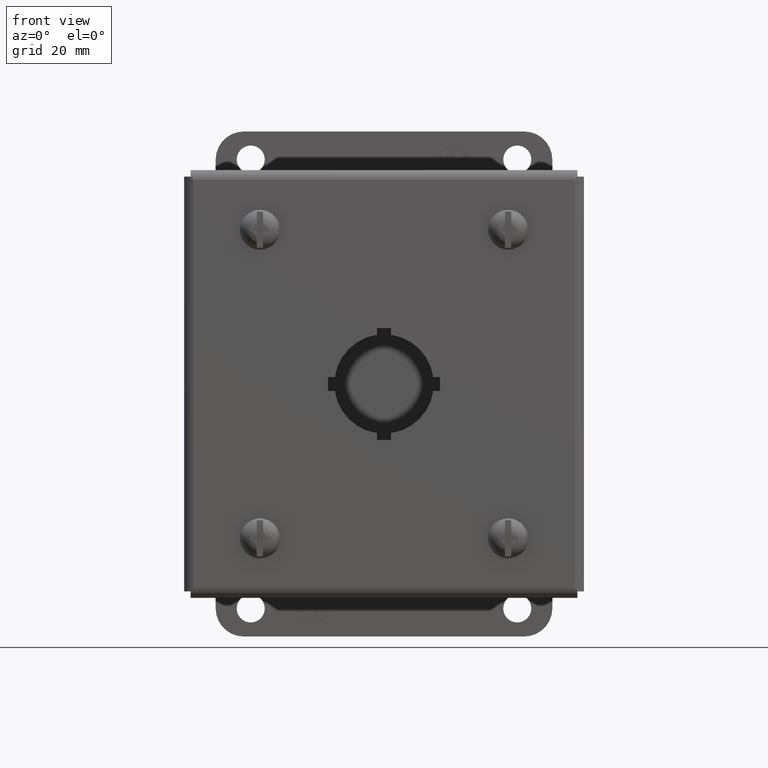
[diagram: clean part render]
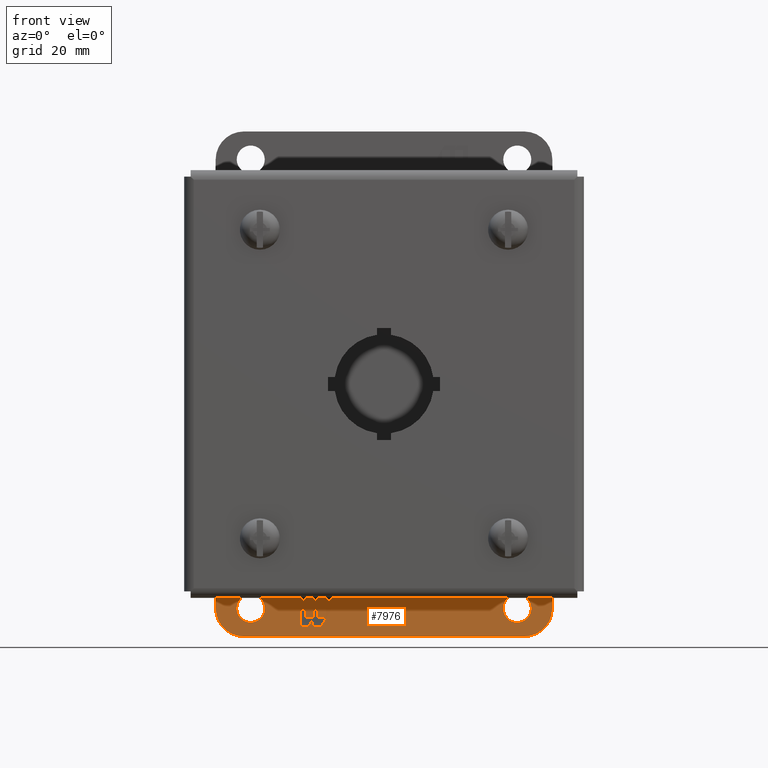
[diagram: same view with one face highlighted and labeled with its STEP entity id]
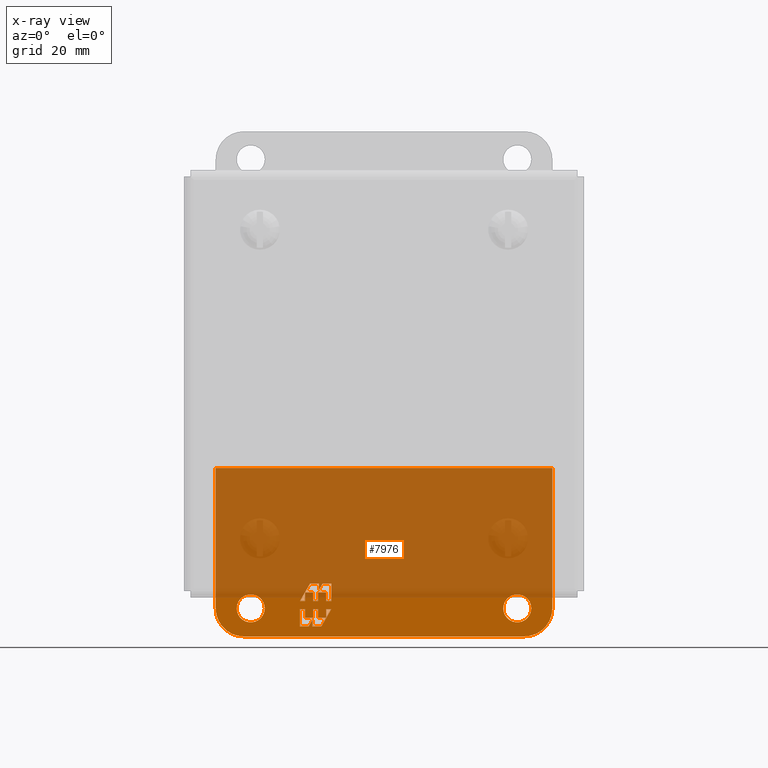
[diagram: x-ray of the same camera — body ghosted, the highlighted face saturated]
A machine part, front view. The second image highlights one B-rep face of the part: STEP entity #7976.
The next image is the same camera in x-ray: the body ghosted, the highlighted face saturated — about 79% of this face is hidden behind the body in this view.
In plain terms, the highlighted planar face has unit normal (0, 1, -0).
Its self-contained STEP definition (entity closure, byte-faithful):
#127 = CARTESIAN_POINT ( 'NONE',  ( -1.062500000000002220, 2.049925825376783954E-16, -2.000000000000000000 ) ) ;
#134 = ORIENTED_EDGE ( 'NONE', *, *, #13579, .F. ) ;
#144 = VECTOR ( 'NONE', #9845, 39.37007874015748143 ) ;
#177 = AXIS2_PLACEMENT_3D ( 'NONE', #11501, #3909, #1714 ) ;
#198 = ORIENTED_EDGE ( 'NONE', *, *, #1608, .F. ) ;
#253 = CARTESIAN_POINT ( 'NONE',  ( -1.312500000000002220, 2.730808163535677171E-16, -1.999999999999999778 ) ) ;
#369 = EDGE_LOOP ( 'NONE', ( #13609, #13432 ) ) ;
#386 = CARTESIAN_POINT ( 'NONE',  ( 1.249999999999997780, -2.134256245050205701E-16, -2.005781588232791623 ) ) ;
#490 = LINE ( 'NONE', #957, #10787 ) ;
#525 = VERTEX_POINT ( 'NONE', #527 ) ;
#527 = CARTESIAN_POINT ( 'NONE',  ( -0.5873047738310414045, 3.158699242674304408E-16, -1.857545787266897674 ) ) ;
#556 = CARTESIAN_POINT ( 'NONE',  ( 1.062499999999998002, -3.757330821416947726E-16, -2.000000000000000444 ) ) ;
#571 = VECTOR ( 'NONE', #11378, 39.37007874015748143 ) ;
#580 = DIRECTION ( 'NONE',  ( 1.000000000000000000, -2.723529352635570402E-16, -2.272474258177639947E-16 ) ) ;
#618 = ORIENTED_EDGE ( 'NONE', *, *, #10797, .F. ) ;
#649 = EDGE_CURVE ( 'NONE', #1641, #6470, #7303, .T. ) ;
#659 = AXIS2_PLACEMENT_3D ( 'NONE', #3911, #1845, #9371 ) ;
#676 = VERTEX_POINT ( 'NONE', #1851 ) ;
#680 = CARTESIAN_POINT ( 'NONE',  ( -0.5480772707149942358, 3.244069492476312449E-16, -1.780436581383295414 ) ) ;
#721 = VERTEX_POINT ( 'NONE', #11849 ) ;
#784 = VERTEX_POINT ( 'NONE', #13196 ) ;
#804 = DIRECTION ( 'NONE',  ( 2.272474258177640440E-16, 2.106062720053089158E-16, 1.000000000000000000 ) ) ;
#814 = CIRCLE ( 'NONE', #1036, 0.1250000000000000278 ) ;
#888 = LINE ( 'NONE', #5873, #7112 ) ;
#938 = DIRECTION ( 'NONE',  ( -2.272474258177640440E-16, -2.106062720053089158E-16, -1.000000000000000000 ) ) ;
#957 = CARTESIAN_POINT ( 'NONE',  ( -0.6311772530406793980, 2.987958743070287834E-16, -2.000000000000000000 ) ) ;
#968 = ORIENTED_EDGE ( 'NONE', *, *, #13411, .F. ) ;
#978 = DIRECTION ( 'NONE',  ( 2.723529352635569909E-16, 1.000000000000000000, -2.106062720053089898E-16 ) ) ;
#980 = EDGE_CURVE ( 'NONE', #9064, #7949, #6193, .T. ) ;
#999 = VERTEX_POINT ( 'NONE', #3143 ) ;
#1035 = CARTESIAN_POINT ( 'NONE',  ( 1.499999999999998002, -2.817218243466271259E-16, -2.000000000000000444 ) ) ;
#1036 = AXIS2_PLACEMENT_3D ( 'NONE', #12278, #2555, #1134 ) ;
#1042 = LINE ( 'NONE', #1113, #144 ) ;
#1078 = LINE ( 'NONE', #10658, #5859 ) ;
#1079 = VERTEX_POINT ( 'NONE', #9013 ) ;
#1085 = ORIENTED_EDGE ( 'NONE', *, *, #10463, .F. ) ;
#1113 = CARTESIAN_POINT ( 'NONE',  ( 1.249999999999997780, -1.622034746238156224E-16, -1.780436581383295636 ) ) ;
#1123 = ORIENTED_EDGE ( 'NONE', *, *, #10284, .F. ) ;
#1134 = DIRECTION ( 'NONE',  ( 1.000000000000000000, -2.723529352635570895E-16, 0.0000000000000000000 ) ) ;
#1183 = EDGE_CURVE ( 'NONE', #525, #9942, #5835, .T. ) ;
#1224 = CARTESIAN_POINT ( 'NONE',  ( 1.249999999999997780, -2.134256245050205701E-16, -2.000000000000000444 ) ) ;
#1279 = VECTOR ( 'NONE', #9989, 39.37007874015748143 ) ;
#1338 = CIRCLE ( 'NONE', #659, 0.1250000000000000278 ) ;
#1408 = CARTESIAN_POINT ( 'NONE',  ( 1.249999999999997780, -2.304996744654222029E-16, -2.082890794116393884 ) ) ;
#1459 = CIRCLE ( 'NONE', #11415, 0.2500000000000000555 ) ;
#1536 = VECTOR ( 'NONE', #4145, 39.37007874015748143 ) ;
#1562 = VERTEX_POINT ( 'NONE', #9265 ) ;
#1604 = LINE ( 'NONE', #5807, #5064 ) ;
#1608 = EDGE_CURVE ( 'NONE', #2333, #1562, #9529, .T. ) ;
#1641 = VERTEX_POINT ( 'NONE', #4352 ) ;
#1697 = EDGE_CURVE ( 'NONE', #5197, #9555, #10071, .T. ) ;
#1714 = DIRECTION ( 'NONE',  ( 1.000000000000000000, -2.723529352635570895E-16, 0.0000000000000000000 ) ) ;
#1735 = VECTOR ( 'NONE', #580, 39.37007874015748143 ) ;
#1827 = LINE ( 'NONE', #2893, #9386 ) ;
#1843 = ORIENTED_EDGE ( 'NONE', *, *, #5970, .F. ) ;
#1845 = DIRECTION ( 'NONE',  ( 2.723529352635569909E-16, 1.000000000000000000, -2.106062720053089898E-16 ) ) ;
#1851 = CARTESIAN_POINT ( 'NONE',  ( -0.6311772530406793980, 2.817218243466271259E-16, -2.082890794116393440 ) ) ;
#1879 = DIRECTION ( 'NONE',  ( 2.272474258177640440E-16, 2.106062720053089158E-16, 1.000000000000000000 ) ) ;
#1884 = VECTOR ( 'NONE', #1879, 39.37007874015748143 ) ;
#1911 = CARTESIAN_POINT ( 'NONE',  ( -1.250000000000002220, 4.695363739110452592E-16, -2.000000000000000000 ) ) ;
#1965 = EDGE_CURVE ( 'NONE', #999, #8156, #4054, .T. ) ;
#1983 = VECTOR ( 'NONE', #804, 39.37007874015748143 ) ;
#1998 = VERTEX_POINT ( 'NONE', #3338 ) ;
#2009 = CARTESIAN_POINT ( 'NONE',  ( -0.4689820268717188045, 2.561107494060246644E-16, -2.000000000000000000 ) ) ;
#2210 = CIRCLE ( 'NONE', #177, 0.1250000000000000278 ) ;
#2244 = ORIENTED_EDGE ( 'NONE', *, *, #9522, .F. ) ;
#2304 = DIRECTION ( 'NONE',  ( -1.000000000000000000, 2.723529352635569909E-16, 8.699586324623011159E-18 ) ) ;
#2311 = EDGE_CURVE ( 'NONE', #7436, #4732, #3901, .T. ) ;
#2333 = VERTEX_POINT ( 'NONE', #11491 ) ;
#2408 = ORIENTED_EDGE ( 'NONE', *, *, #7264, .F. ) ;
#2474 = EDGE_CURVE ( 'NONE', #6709, #4814, #11762, .T. ) ;
#2525 = CARTESIAN_POINT ( 'NONE',  ( 1.499999999999998224, -1.707404996040164512E-17, -0.7499999999999997780 ) ) ;
#2534 = FACE_BOUND ( 'NONE', #12229, .T. ) ;
#2555 = DIRECTION ( 'NONE',  ( 2.723529352635569909E-16, 1.000000000000000000, -2.106062720053089898E-16 ) ) ;
#2593 = EDGE_CURVE ( 'NONE', #3065, #13740, #6730, .T. ) ;
#2597 = CARTESIAN_POINT ( 'NONE',  ( -0.6703965905159584571, 2.731847993664263218E-16, -2.159999999999999698 ) ) ;
#2724 = LINE ( 'NONE', #7045, #571 ) ;
#2734 = ORIENTED_EDGE ( 'NONE', *, *, #6289, .F. ) ;
#2818 = EDGE_CURVE ( 'NONE', #4838, #721, #8621, .T. ) ;
#2827 = DIRECTION ( 'NONE',  ( -2.272474258177640440E-16, -2.106062720053089158E-16, -1.000000000000000000 ) ) ;
#2864 = CARTESIAN_POINT ( 'NONE',  ( -0.7023038481229665342, 3.158699242674304408E-16, -2.005781588232790735 ) ) ;
#2893 = CARTESIAN_POINT ( 'NONE',  ( -0.7495000000000020535, 3.329439742278320982E-16, -2.000000000000000000 ) ) ;
#2985 = DIRECTION ( 'NONE',  ( -1.000000000000000000, 2.723529352635570402E-16, 2.272474258177639947E-16 ) ) ;
#3065 = VERTEX_POINT ( 'NONE', #5207 ) ;
#3076 = VECTOR ( 'NONE', #9093, 39.37007874015748143 ) ;
#3093 = VECTOR ( 'NONE', #4534, 39.37007874015748143 ) ;
#3143 = CARTESIAN_POINT ( 'NONE',  ( -0.5580564543579509262, 2.475737244258238603E-16, -2.159999999999999698 ) ) ;
#3152 = CARTESIAN_POINT ( 'NONE',  ( -0.6378245983754705639, 3.073328992872296367E-16, -2.000000000000000000 ) ) ;
#3166 = EDGE_CURVE ( 'NONE', #7889, #6972, #12041, .T. ) ;
#3178 = ORIENTED_EDGE ( 'NONE', *, *, #2818, .F. ) ;
#3338 = CARTESIAN_POINT ( 'NONE',  ( -0.5161781787487540463, 2.817218243466271259E-16, -1.934654993150499935 ) ) ;
#3344 = ORIENTED_EDGE ( 'NONE', *, *, #1965, .F. ) ;
#3396 = VECTOR ( 'NONE', #2985, 39.37007874015748143 ) ;
#3421 = LINE ( 'NONE', #3639, #9007 ) ;
#3604 = CARTESIAN_POINT ( 'NONE',  ( -0.5806574284962501276, 2.902588493268279793E-16, -2.000000000000000000 ) ) ;
#3639 = CARTESIAN_POINT ( 'NONE',  ( -0.7023038481229665342, 3.244069492476312449E-16, -2.000000000000000000 ) ) ;
#3689 = DIRECTION ( 'NONE',  ( 1.000000000000000000, -2.723529352635570402E-16, -2.272474258177639947E-16 ) ) ;
#3782 = VECTOR ( 'NONE', #13472, 39.37007874015748143 ) ;
#3805 = DIRECTION ( 'NONE',  ( -0.4995222698726163313, -4.640207725449075375E-17, -0.8663010457694882982 ) ) ;
#3883 = LINE ( 'NONE', #3604, #3782 ) ;
#3901 = LINE ( 'NONE', #4909, #1735 ) ;
#3909 = DIRECTION ( 'NONE',  ( 2.723529352635569909E-16, 1.000000000000000000, -2.106062720053089898E-16 ) ) ;
#3911 = CARTESIAN_POINT ( 'NONE',  ( 1.187499999999998002, -4.097771990496394828E-16, -2.000000000000000444 ) ) ;
#3980 = CARTESIAN_POINT ( 'NONE',  ( -0.7495000000000020535, 3.329439742278320982E-16, -2.005781588232790735 ) ) ;
#4041 = VERTEX_POINT ( 'NONE', #10622 ) ;
#4054 = LINE ( 'NONE', #8368, #13925 ) ;
#4058 = LINE ( 'NONE', #12703, #3396 ) ;
#4145 = DIRECTION ( 'NONE',  ( -2.272474258177640440E-16, -2.106062720053089158E-16, -1.000000000000000000 ) ) ;
#4207 = LINE ( 'NONE', #6539, #11644 ) ;
#4333 = CARTESIAN_POINT ( 'NONE',  ( -1.500000000000002220, 6.402768735150617350E-16, -1.499999999999999778 ) ) ;
#4352 = CARTESIAN_POINT ( 'NONE',  ( -1.500000000000002220, 5.378325737526517903E-16, -2.000000000000000000 ) ) ;
#4368 = EDGE_CURVE ( 'NONE', #4874, #4817, #10408, .T. ) ;
#4398 = ORIENTED_EDGE ( 'NONE', *, *, #11261, .F. ) ;
#4399 = VECTOR ( 'NONE', #8302, 39.37007874015748143 ) ;
#4416 = ORIENTED_EDGE ( 'NONE', *, *, #5889, .F. ) ;
#4534 = DIRECTION ( 'NONE',  ( -2.272474258177640440E-16, -2.106062720053089158E-16, -1.000000000000000000 ) ) ;
#4539 = ORIENTED_EDGE ( 'NONE', *, *, #2474, .F. ) ;
#4579 = CARTESIAN_POINT ( 'NONE',  ( -1.250000000000002220, 4.183142240298402868E-16, -2.249999999999999556 ) ) ;
#4675 = FACE_BOUND ( 'NONE', #369, .T. ) ;
#4732 = VERTEX_POINT ( 'NONE', #2597 ) ;
#4814 = VERTEX_POINT ( 'NONE', #2864 ) ;
#4816 = CARTESIAN_POINT ( 'NONE',  ( 1.249999999999997780, -2.134256245050205701E-16, -2.000000000000000444 ) ) ;
#4817 = VERTEX_POINT ( 'NONE', #13649 ) ;
#4836 = ORIENTED_EDGE ( 'NONE', *, *, #11359, .F. ) ;
#4838 = VERTEX_POINT ( 'NONE', #11864 ) ;
#4859 = DIRECTION ( 'NONE',  ( 0.5001532225523820374, 4.615354882276641336E-17, 0.8659369226280094756 ) ) ;
#4874 = VERTEX_POINT ( 'NONE', #6190 ) ;
#4909 = CARTESIAN_POINT ( 'NONE',  ( 1.249999999999997780, -2.475737244258238603E-16, -2.160000000000000586 ) ) ;
#5013 = CARTESIAN_POINT ( 'NONE',  ( 1.249999999999997780, -2.646477743862255178E-16, -2.249999999999999556 ) ) ;
#5026 = VECTOR ( 'NONE', #11893, 39.37007874015748143 ) ;
#5054 = VERTEX_POINT ( 'NONE', #11485 ) ;
#5064 = VECTOR ( 'NONE', #10125, 39.37007874015749564 ) ;
#5095 = DIRECTION ( 'NONE',  ( -2.272474258177640440E-16, -2.106062720053089158E-16, -1.000000000000000000 ) ) ;
#5127 = ORIENTED_EDGE ( 'NONE', *, *, #9853, .F. ) ;
#5163 = LINE ( 'NONE', #12809, #6182 ) ;
#5197 = VERTEX_POINT ( 'NONE', #127 ) ;
#5207 = CARTESIAN_POINT ( 'NONE',  ( -0.7495000000000013873, 3.414809992080329023E-16, -1.934654993150500601 ) ) ;
#5321 = DIRECTION ( 'NONE',  ( -1.000000000000000000, 2.723529352635570895E-16, 0.0000000000000000000 ) ) ;
#5354 = CARTESIAN_POINT ( 'NONE',  ( -1.187500000000002220, 2.390366994456230070E-16, -2.000000000000000000 ) ) ;
#5478 = VERTEX_POINT ( 'NONE', #556 ) ;
#5498 = LINE ( 'NONE', #3152, #1536 ) ;
#5602 = LINE ( 'NONE', #9924, #3093 ) ;
#5608 = ORIENTED_EDGE ( 'NONE', *, *, #7227, .F. ) ;
#5621 = CARTESIAN_POINT ( 'NONE',  ( -1.500000000000001998, 8.024803481388773574E-16, -0.7499999999999996669 ) ) ;
#5669 = LINE ( 'NONE', #6793, #1279 ) ;
#5700 = EDGE_CURVE ( 'NONE', #6972, #8303, #888, .T. ) ;
#5718 = ORIENTED_EDGE ( 'NONE', *, *, #13337, .F. ) ;
#5728 = EDGE_LOOP ( 'NONE', ( #7758, #7552 ) ) ;
#5743 = DIRECTION ( 'NONE',  ( -1.000000000000000000, 2.723529352635570402E-16, 2.272474258177639947E-16 ) ) ;
#5786 = VERTEX_POINT ( 'NONE', #7694 ) ;
#5790 = LINE ( 'NONE', #12303, #11324 ) ;
#5792 = VERTEX_POINT ( 'NONE', #2525 ) ;
#5807 = CARTESIAN_POINT ( 'NONE',  ( -0.6604174068730019886, 3.585550491684345597E-16, -1.780436581383295414 ) ) ;
#5835 = LINE ( 'NONE', #8334, #11477 ) ;
#5845 = ORIENTED_EDGE ( 'NONE', *, *, #7427, .F. ) ;
#5859 = VECTOR ( 'NONE', #938, 39.37007874015748143 ) ;
#5873 = CARTESIAN_POINT ( 'NONE',  ( -1.250000000000002220, 4.183142240298402868E-16, -2.249999999999999556 ) ) ;
#5882 = ORIENTED_EDGE ( 'NONE', *, *, #13483, .F. ) ;
#5889 = EDGE_CURVE ( 'NONE', #4041, #4838, #10330, .T. ) ;
#5911 = AXIS2_PLACEMENT_3D ( 'NONE', #4816, #6929, #12187 ) ;
#5924 = CARTESIAN_POINT ( 'NONE',  ( -0.7495000000000020535, 2.987958743070287834E-16, -2.159999999999999698 ) ) ;
#5941 = AXIS2_PLACEMENT_3D ( 'NONE', #1224, #6384, #13070 ) ;
#5947 = CARTESIAN_POINT ( 'NONE',  ( 1.249999999999997780, -1.963515745446189127E-16, -1.934654993150500601 ) ) ;
#5970 = EDGE_CURVE ( 'NONE', #4814, #11475, #4207, .T. ) ;
#6011 = ORIENTED_EDGE ( 'NONE', *, *, #3166, .F. ) ;
#6031 = EDGE_LOOP ( 'NONE', ( #9558, #5882, #9876, #12406, #2244, #1123, #3178, #4416, #4836, #11328, #10429, #5845, #13112, #198, #1085 ) ) ;
#6077 = CARTESIAN_POINT ( 'NONE',  ( -0.6378245983754705639, 2.731847993664263218E-16, -2.159999999999999698 ) ) ;
#6182 = VECTOR ( 'NONE', #11401, 39.37007874015748143 ) ;
#6190 = CARTESIAN_POINT ( 'NONE',  ( -0.5873047738310414045, 2.731847993664263218E-16, -2.082890794116393440 ) ) ;
#6193 = LINE ( 'NONE', #2009, #1983 ) ;
#6225 = CARTESIAN_POINT ( 'NONE',  ( 1.249999999999997780, -1.963515745446189127E-16, -1.934654993150500601 ) ) ;
#6249 = DIRECTION ( 'NONE',  ( 2.272474258177640440E-16, 2.106062720053089158E-16, 1.000000000000000000 ) ) ;
#6289 = EDGE_CURVE ( 'NONE', #4732, #1079, #9372, .T. ) ;
#6384 = DIRECTION ( 'NONE',  ( 2.723529352635569909E-16, 1.000000000000000000, -2.106062720053089898E-16 ) ) ;
#6470 = VERTEX_POINT ( 'NONE', #5621 ) ;
#6533 = DIRECTION ( 'NONE',  ( 2.272474258177640440E-16, 2.106062720053089158E-16, 1.000000000000000000 ) ) ;
#6539 = CARTESIAN_POINT ( 'NONE',  ( 1.249999999999997780, -2.134256245050205701E-16, -2.005781588232791623 ) ) ;
#6543 = DIRECTION ( 'NONE',  ( 2.723529352635569909E-16, 1.000000000000000000, -2.106062720053089898E-16 ) ) ;
#6655 = VECTOR ( 'NONE', #3805, 39.37007874015748143 ) ;
#6659 = EDGE_CURVE ( 'NONE', #9942, #1998, #5163, .T. ) ;
#6709 = VERTEX_POINT ( 'NONE', #8763 ) ;
#6719 = VECTOR ( 'NONE', #8631, 39.37007874015748143 ) ;
#6730 = LINE ( 'NONE', #13335, #10806 ) ;
#6773 = LINE ( 'NONE', #13374, #7455 ) ;
#6793 = CARTESIAN_POINT ( 'NONE',  ( -1.500000000000001998, 8.024803481388773574E-16, -0.7499999999999996669 ) ) ;
#6796 = LINE ( 'NONE', #1408, #11469 ) ;
#6887 = EDGE_CURVE ( 'NONE', #5054, #3065, #1604, .T. ) ;
#6929 = DIRECTION ( 'NONE',  ( 2.723529352635569909E-16, 1.000000000000000000, -2.106062720053089898E-16 ) ) ;
#6963 = CARTESIAN_POINT ( 'NONE',  ( 1.249999999999997780, -2.134256245050205701E-16, -2.005781588232791623 ) ) ;
#6972 = VERTEX_POINT ( 'NONE', #5013 ) ;
#6990 = CARTESIAN_POINT ( 'NONE',  ( 1.249999999999997780, -1.792775245842172799E-16, -1.857545787266897896 ) ) ;
#7045 = CARTESIAN_POINT ( 'NONE',  ( -0.5873047738310414045, 2.902588493268279793E-16, -2.000000000000000000 ) ) ;
#7058 = FACE_OUTER_BOUND ( 'NONE', #11970, .T. ) ;
#7112 = VECTOR ( 'NONE', #2304, 39.37007874015748143 ) ;
#7227 = EDGE_CURVE ( 'NONE', #5786, #4874, #5790, .T. ) ;
#7264 = EDGE_CURVE ( 'NONE', #8111, #999, #6773, .T. ) ;
#7303 = LINE ( 'NONE', #4333, #9608 ) ;
#7362 = CARTESIAN_POINT ( 'NONE',  ( -0.7023038481229665342, 3.244069492476312449E-16, -2.000000000000000000 ) ) ;
#7403 = CARTESIAN_POINT ( 'NONE',  ( -0.4689820268717186935, 2.561107494060246644E-16, -2.005781588232791623 ) ) ;
#7427 = EDGE_CURVE ( 'NONE', #8618, #5054, #4058, .T. ) ;
#7436 = VERTEX_POINT ( 'NONE', #5924 ) ;
#7455 = VECTOR ( 'NONE', #7750, 39.37007874015748143 ) ;
#7552 = ORIENTED_EDGE ( 'NONE', *, *, #13002, .T. ) ;
#7694 = CARTESIAN_POINT ( 'NONE',  ( -0.5161781787487540463, 2.561107494060246644E-16, -2.082890794116393440 ) ) ;
#7750 = DIRECTION ( 'NONE',  ( 1.000000000000000000, -2.723529352635570402E-16, -2.272474258177639947E-16 ) ) ;
#7758 = ORIENTED_EDGE ( 'NONE', *, *, #12689, .T. ) ;
#7889 = VERTEX_POINT ( 'NONE', #1035 ) ;
#7931 = DIRECTION ( 'NONE',  ( 1.000000000000000000, -2.723529352635570402E-16, -2.272474258177639947E-16 ) ) ;
#7949 = VERTEX_POINT ( 'NONE', #11048 ) ;
#7976 = ADVANCED_FACE ( 'NONE', ( #2534, #7058, #8905, #4675, #8981 ), #11119, .F. ) ;
#8111 = VERTEX_POINT ( 'NONE', #6077 ) ;
#8156 = VERTEX_POINT ( 'NONE', #7403 ) ;
#8302 = DIRECTION ( 'NONE',  ( 0.4994283039552422365, 4.643907882216089302E-17, 0.8663552211468401598 ) ) ;
#8303 = VERTEX_POINT ( 'NONE', #4579 ) ;
#8334 = CARTESIAN_POINT ( 'NONE',  ( 1.249999999999997780, -1.792775245842172799E-16, -1.857545787266897896 ) ) ;
#8368 = CARTESIAN_POINT ( 'NONE',  ( -0.5580564543579509262, 2.475737244258238603E-16, -2.159999999999999698 ) ) ;
#8400 = ORIENTED_EDGE ( 'NONE', *, *, #4368, .F. ) ;
#8407 = DIRECTION ( 'NONE',  ( 1.000000000000000000, -2.723529352635570402E-16, -2.272474258177639947E-16 ) ) ;
#8618 = VERTEX_POINT ( 'NONE', #12777 ) ;
#8621 = LINE ( 'NONE', #10761, #5026 ) ;
#8631 = DIRECTION ( 'NONE',  ( 2.272474258177640440E-16, 2.106062720053089158E-16, 1.000000000000000000 ) ) ;
#8763 = CARTESIAN_POINT ( 'NONE',  ( -0.7023038481229665342, 3.073328992872296367E-16, -2.082890794116393440 ) ) ;
#8831 = CARTESIAN_POINT ( 'NONE',  ( -0.7023038481229665342, 3.329439742278320982E-16, -1.934654993150499935 ) ) ;
#8905 = FACE_BOUND ( 'NONE', #5728, .T. ) ;
#8954 = LINE ( 'NONE', #386, #9704 ) ;
#8966 = EDGE_CURVE ( 'NONE', #8303, #1641, #1459, .T. ) ;
#8981 = FACE_BOUND ( 'NONE', #6031, .T. ) ;
#9007 = VECTOR ( 'NONE', #6533, 39.37007874015748143 ) ;
#9013 = CARTESIAN_POINT ( 'NONE',  ( -0.6378245983754705639, 2.731847993664263218E-16, -2.103497564654255747 ) ) ;
#9042 = ORIENTED_EDGE ( 'NONE', *, *, #649, .F. ) ;
#9044 = CARTESIAN_POINT ( 'NONE',  ( 1.312499999999998002, -4.438213159575841436E-16, -2.000000000000000444 ) ) ;
#9064 = VERTEX_POINT ( 'NONE', #12052 ) ;
#9093 = DIRECTION ( 'NONE',  ( -1.000000000000000000, 2.723529352635570402E-16, 2.272474258177639947E-16 ) ) ;
#9250 = EDGE_CURVE ( 'NONE', #11475, #7436, #1827, .T. ) ;
#9265 = CARTESIAN_POINT ( 'NONE',  ( -0.5806574284962501276, 3.158699242674304408E-16, -1.836939016729039142 ) ) ;
#9371 = DIRECTION ( 'NONE',  ( 1.000000000000000000, -2.723529352635570895E-16, 0.0000000000000000000 ) ) ;
#9372 = LINE ( 'NONE', #13708, #4399 ) ;
#9386 = VECTOR ( 'NONE', #2827, 39.37007874015748143 ) ;
#9394 = ORIENTED_EDGE ( 'NONE', *, *, #8966, .F. ) ;
#9404 = CARTESIAN_POINT ( 'NONE',  ( -0.5873047738310414045, 2.902588493268279793E-16, -2.000000000000000000 ) ) ;
#9522 = EDGE_CURVE ( 'NONE', #12753, #525, #2724, .T. ) ;
#9529 = LINE ( 'NONE', #680, #6655 ) ;
#9555 = VERTEX_POINT ( 'NONE', #253 ) ;
#9558 = ORIENTED_EDGE ( 'NONE', *, *, #980, .F. ) ;
#9608 = VECTOR ( 'NONE', #6249, 39.37007874015748143 ) ;
#9671 = DIRECTION ( 'NONE',  ( -1.000000000000000000, 2.723529352635570402E-16, 2.272474258177639947E-16 ) ) ;
#9704 = VECTOR ( 'NONE', #11231, 39.37007874015748143 ) ;
#9845 = DIRECTION ( 'NONE',  ( -1.000000000000000000, 2.723529352635570402E-16, 2.272474258177639947E-16 ) ) ;
#9853 = EDGE_CURVE ( 'NONE', #4817, #10843, #13426, .T. ) ;
#9876 = ORIENTED_EDGE ( 'NONE', *, *, #6659, .F. ) ;
#9924 = CARTESIAN_POINT ( 'NONE',  ( -0.5161781787487540463, 2.731847993664263218E-16, -2.000000000000000000 ) ) ;
#9942 = VERTEX_POINT ( 'NONE', #11298 ) ;
#9989 = DIRECTION ( 'NONE',  ( 1.000000000000000000, -2.723529352635569909E-16, -4.355647274440698687E-17 ) ) ;
#10071 = CIRCLE ( 'NONE', #11873, 0.1250000000000000278 ) ;
#10125 = DIRECTION ( 'NONE',  ( -0.5001876019195790057, -4.614000329059833648E-17, -0.8659170646695563134 ) ) ;
#10139 = LINE ( 'NONE', #5947, #12170 ) ;
#10255 = DIRECTION ( 'NONE',  ( 1.000000000000000000, -2.723529352635570402E-16, -2.272474258177639947E-16 ) ) ;
#10284 = EDGE_CURVE ( 'NONE', #721, #12753, #13821, .T. ) ;
#10309 = ORIENTED_EDGE ( 'NONE', *, *, #2311, .F. ) ;
#10327 = ORIENTED_EDGE ( 'NONE', *, *, #5700, .F. ) ;
#10330 = LINE ( 'NONE', #6990, #11419 ) ;
#10408 = LINE ( 'NONE', #9404, #1884 ) ;
#10429 = ORIENTED_EDGE ( 'NONE', *, *, #6887, .F. ) ;
#10463 = EDGE_CURVE ( 'NONE', #7949, #2333, #1042, .T. ) ;
#10532 = EDGE_CURVE ( 'NONE', #6470, #5792, #5669, .T. ) ;
#10560 = VECTOR ( 'NONE', #8407, 39.37007874015748143 ) ;
#10600 = ORIENTED_EDGE ( 'NONE', *, *, #9250, .F. ) ;
#10622 = CARTESIAN_POINT ( 'NONE',  ( -0.7023038481229665342, 3.500180241882337064E-16, -1.857545787266897674 ) ) ;
#10658 = CARTESIAN_POINT ( 'NONE',  ( 1.499999999999998002, -1.707404996040164512E-16, -1.500000000000000444 ) ) ;
#10707 = CARTESIAN_POINT ( 'NONE',  ( -0.5873047738310414045, 3.073328992872296367E-16, -1.934654993150499935 ) ) ;
#10761 = CARTESIAN_POINT ( 'NONE',  ( -0.6311772530406793980, 2.987958743070287834E-16, -2.000000000000000000 ) ) ;
#10787 = VECTOR ( 'NONE', #5095, 39.37007874015748143 ) ;
#10797 = EDGE_CURVE ( 'NONE', #1079, #8111, #5498, .T. ) ;
#10806 = VECTOR ( 'NONE', #7931, 39.37007874015748143 ) ;
#10843 = VERTEX_POINT ( 'NONE', #11667 ) ;
#11048 = CARTESIAN_POINT ( 'NONE',  ( -0.4689820268717186380, 3.073328992872296367E-16, -1.780436581383295414 ) ) ;
#11119 = PLANE ( 'NONE',  #5911 ) ;
#11231 = DIRECTION ( 'NONE',  ( -1.000000000000000000, 2.723529352635570402E-16, 2.272474258177639947E-16 ) ) ;
#11261 = EDGE_CURVE ( 'NONE', #5792, #7889, #1078, .T. ) ;
#11298 = CARTESIAN_POINT ( 'NONE',  ( -0.5161781787487541573, 2.987958743070287834E-16, -1.857545787266897674 ) ) ;
#11324 = VECTOR ( 'NONE', #12372, 39.37007874015748143 ) ;
#11328 = ORIENTED_EDGE ( 'NONE', *, *, #2593, .F. ) ;
#11359 = EDGE_CURVE ( 'NONE', #13740, #4041, #3421, .T. ) ;
#11378 = DIRECTION ( 'NONE',  ( 2.272474258177640440E-16, 2.106062720053089158E-16, 1.000000000000000000 ) ) ;
#11397 = DIRECTION ( 'NONE',  ( 1.000000000000000000, -2.723529352635570402E-16, -2.272474258177639947E-16 ) ) ;
#11401 = DIRECTION ( 'NONE',  ( -2.272474258177640440E-16, -2.106062720053089158E-16, -1.000000000000000000 ) ) ;
#11415 = AXIS2_PLACEMENT_3D ( 'NONE', #1911, #978, #5321 ) ;
#11419 = VECTOR ( 'NONE', #10255, 39.37007874015748143 ) ;
#11452 = EDGE_CURVE ( 'NONE', #9555, #5197, #2210, .T. ) ;
#11469 = VECTOR ( 'NONE', #5743, 39.37007874015748143 ) ;
#11475 = VERTEX_POINT ( 'NONE', #3980 ) ;
#11477 = VECTOR ( 'NONE', #3689, 39.37007874015748143 ) ;
#11485 = CARTESIAN_POINT ( 'NONE',  ( -0.6604174068730019886, 3.500180241882337064E-16, -1.780436581383295414 ) ) ;
#11491 = CARTESIAN_POINT ( 'NONE',  ( -0.5480772707149943468, 3.158699242674304408E-16, -1.780436581383295414 ) ) ;
#11501 = CARTESIAN_POINT ( 'NONE',  ( -1.187500000000002220, 2.390366994456230070E-16, -2.000000000000000000 ) ) ;
#11644 = VECTOR ( 'NONE', #9671, 39.37007874015748143 ) ;
#11667 = CARTESIAN_POINT ( 'NONE',  ( -0.6311772530406793980, 2.987958743070287834E-16, -2.005781588232790735 ) ) ;
#11762 = LINE ( 'NONE', #7362, #6719 ) ;
#11849 = CARTESIAN_POINT ( 'NONE',  ( -0.6311772530406793980, 3.158699242674304408E-16, -1.934654993150499935 ) ) ;
#11864 = CARTESIAN_POINT ( 'NONE',  ( -0.6311772530406793980, 3.329439742278320982E-16, -1.857545787266897674 ) ) ;
#11873 = AXIS2_PLACEMENT_3D ( 'NONE', #5354, #6543, #12792 ) ;
#11893 = DIRECTION ( 'NONE',  ( -2.272474258177640440E-16, -2.106062720053089158E-16, -1.000000000000000000 ) ) ;
#11970 = EDGE_LOOP ( 'NONE', ( #9042, #9394, #10327, #6011, #4398, #12202 ) ) ;
#12041 = CIRCLE ( 'NONE', #5941, 0.2500000000000000555 ) ;
#12052 = CARTESIAN_POINT ( 'NONE',  ( -0.4689820268717186935, 2.731847993664263218E-16, -1.934654993150499935 ) ) ;
#12094 = VERTEX_POINT ( 'NONE', #9044 ) ;
#12170 = VECTOR ( 'NONE', #11397, 39.37007874015748143 ) ;
#12187 = DIRECTION ( 'NONE',  ( -1.000000000000000000, 2.723529352635570402E-16, 2.272474258177639947E-16 ) ) ;
#12202 = ORIENTED_EDGE ( 'NONE', *, *, #10532, .F. ) ;
#12229 = EDGE_LOOP ( 'NONE', ( #10600, #1843, #4539, #968, #134, #5127, #8400, #5608, #5718, #13783, #3344, #2408, #618, #2734, #10309 ) ) ;
#12278 = CARTESIAN_POINT ( 'NONE',  ( 1.187499999999998002, -4.097771990496394828E-16, -2.000000000000000444 ) ) ;
#12303 = CARTESIAN_POINT ( 'NONE',  ( 1.249999999999997780, -2.304996744654222029E-16, -2.082890794116393884 ) ) ;
#12372 = DIRECTION ( 'NONE',  ( -1.000000000000000000, 2.723529352635570402E-16, 2.272474258177639947E-16 ) ) ;
#12406 = ORIENTED_EDGE ( 'NONE', *, *, #1183, .F. ) ;
#12595 = EDGE_CURVE ( 'NONE', #8156, #784, #8954, .T. ) ;
#12689 = EDGE_CURVE ( 'NONE', #12094, #5478, #1338, .T. ) ;
#12703 = CARTESIAN_POINT ( 'NONE',  ( 1.249999999999997780, -1.622034746238156224E-16, -1.780436581383295636 ) ) ;
#12753 = VERTEX_POINT ( 'NONE', #10707 ) ;
#12777 = CARTESIAN_POINT ( 'NONE',  ( -0.5806574284962500165, 3.329439742278320982E-16, -1.780436581383295414 ) ) ;
#12792 = DIRECTION ( 'NONE',  ( 1.000000000000000000, -2.723529352635570895E-16, 0.0000000000000000000 ) ) ;
#12809 = CARTESIAN_POINT ( 'NONE',  ( -0.5161781787487540463, 2.731847993664263218E-16, -2.000000000000000000 ) ) ;
#13002 = EDGE_CURVE ( 'NONE', #5478, #12094, #814, .T. ) ;
#13070 = DIRECTION ( 'NONE',  ( -1.000000000000000000, 2.723529352635569909E-16, 0.0000000000000000000 ) ) ;
#13112 = ORIENTED_EDGE ( 'NONE', *, *, #13498, .F. ) ;
#13196 = CARTESIAN_POINT ( 'NONE',  ( -0.5161781787487541573, 2.646477743862255178E-16, -2.005781588232791623 ) ) ;
#13335 = CARTESIAN_POINT ( 'NONE',  ( 1.249999999999997780, -1.963515745446189127E-16, -1.934654993150500601 ) ) ;
#13337 = EDGE_CURVE ( 'NONE', #784, #5786, #5602, .T. ) ;
#13374 = CARTESIAN_POINT ( 'NONE',  ( 1.249999999999997780, -2.475737244258238603E-16, -2.160000000000000586 ) ) ;
#13411 = EDGE_CURVE ( 'NONE', #676, #6709, #6796, .T. ) ;
#13426 = LINE ( 'NONE', #6963, #3076 ) ;
#13432 = ORIENTED_EDGE ( 'NONE', *, *, #11452, .T. ) ;
#13472 = DIRECTION ( 'NONE',  ( 2.272474258177640440E-16, 2.106062720053089158E-16, 1.000000000000000000 ) ) ;
#13483 = EDGE_CURVE ( 'NONE', #1998, #9064, #10139, .T. ) ;
#13498 = EDGE_CURVE ( 'NONE', #1562, #8618, #3883, .T. ) ;
#13579 = EDGE_CURVE ( 'NONE', #10843, #676, #490, .T. ) ;
#13609 = ORIENTED_EDGE ( 'NONE', *, *, #1697, .T. ) ;
#13649 = CARTESIAN_POINT ( 'NONE',  ( -0.5873047738310414045, 2.902588493268279793E-16, -2.005781588232790735 ) ) ;
#13708 = CARTESIAN_POINT ( 'NONE',  ( -0.6703965905159585681, 2.817218243466271259E-16, -2.159999999999999698 ) ) ;
#13740 = VERTEX_POINT ( 'NONE', #8831 ) ;
#13783 = ORIENTED_EDGE ( 'NONE', *, *, #12595, .F. ) ;
#13821 = LINE ( 'NONE', #6225, #10560 ) ;
#13925 = VECTOR ( 'NONE', #4859, 39.37007874015748854 ) ;